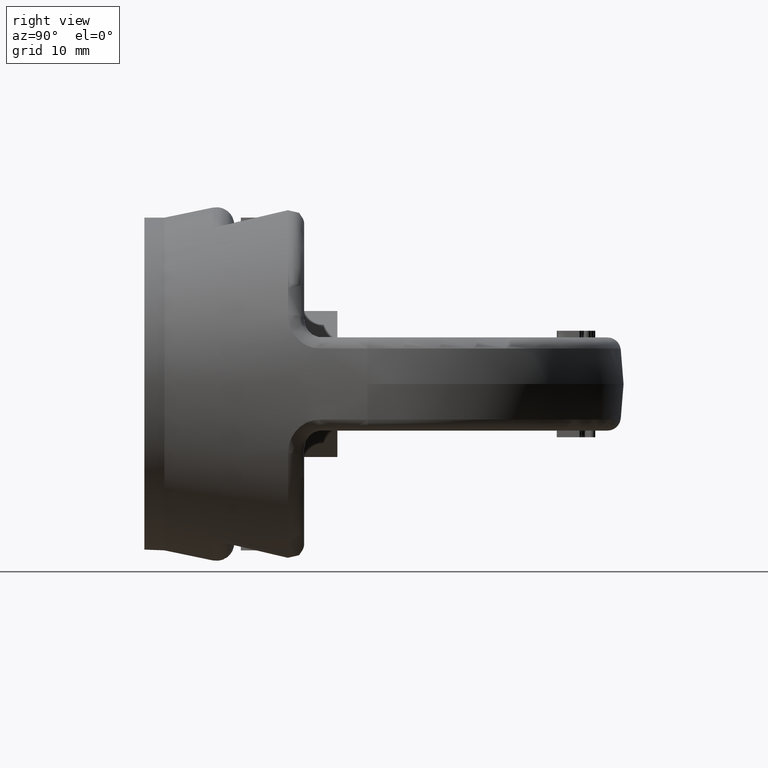
[diagram: clean part render]
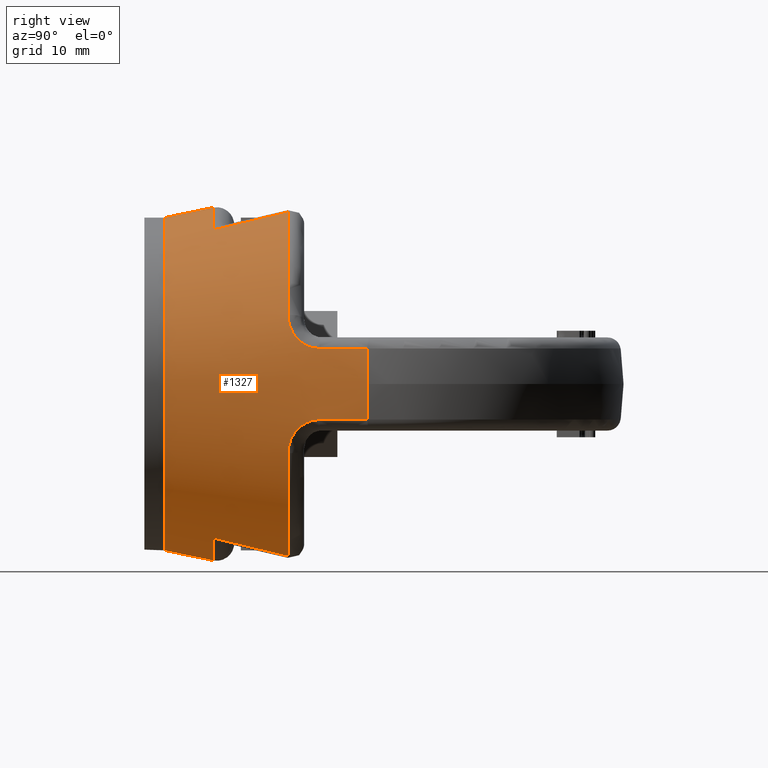
[diagram: same view with one face highlighted and labeled with its STEP entity id]
A machine part, right view. The second image highlights one B-rep face of the part: STEP entity #1327.
In plain terms, the highlighted conical surface has half-angle 11.73 deg.
Its self-contained STEP definition (entity closure, byte-faithful):
#1104=CONICAL_SURFACE('',#5120,24.3770927291007,11.7299779899071);
#1327=ADVANCED_FACE('',(#1779,#1780),#1104,.T.);
#1682=CIRCLE('',#5111,31.3317304100688);
#1683=CIRCLE('',#5112,28.8606548450075);
#1684=CIRCLE('',#5113,26.51391404643);
#1685=CIRCLE('',#5114,28.8606548450075);
#1686=CIRCLE('',#5115,31.3317304100688);
#1687=CIRCLE('',#5116,28.8606548450075);
#1688=CIRCLE('',#5117,26.51391404643);
#1689=CIRCLE('',#5118,28.8606548450075);
#1690=CIRCLE('',#5119,25.0000000000001);
#1779=FACE_BOUND('',#1840,.T.);
#1780=FACE_BOUND('',#1841,.T.);
#1840=EDGE_LOOP('',(#2768,#2769,#2770,#2771,#2772,#2773,#2774,#2775,#2776,
#2777,#2778,#2779,#2780,#2781,#2782,#2783,#2784,#2785,#2786,#2787));
#1841=EDGE_LOOP('',(#2788));
#2768=ORIENTED_EDGE('',*,*,#4322,.T.);
#2769=ORIENTED_EDGE('',*,*,#4323,.T.);
#2770=ORIENTED_EDGE('',*,*,#4324,.T.);
#2771=ORIENTED_EDGE('',*,*,#4325,.T.);
#2772=ORIENTED_EDGE('',*,*,#4326,.T.);
#2773=ORIENTED_EDGE('',*,*,#4327,.T.);
#2774=ORIENTED_EDGE('',*,*,#4328,.T.);
#2775=ORIENTED_EDGE('',*,*,#4329,.T.);
#2776=ORIENTED_EDGE('',*,*,#4330,.T.);
#2777=ORIENTED_EDGE('',*,*,#4331,.T.);
#2778=ORIENTED_EDGE('',*,*,#4332,.T.);
#2779=ORIENTED_EDGE('',*,*,#4333,.T.);
#2780=ORIENTED_EDGE('',*,*,#4334,.T.);
#2781=ORIENTED_EDGE('',*,*,#4335,.T.);
#2782=ORIENTED_EDGE('',*,*,#4336,.T.);
#2783=ORIENTED_EDGE('',*,*,#4337,.T.);
#2784=ORIENTED_EDGE('',*,*,#4338,.T.);
#2785=ORIENTED_EDGE('',*,*,#4339,.T.);
#2786=ORIENTED_EDGE('',*,*,#4340,.T.);
#2787=ORIENTED_EDGE('',*,*,#4341,.T.);
#2788=ORIENTED_EDGE('',*,*,#4342,.F.);
#3936=VERTEX_POINT('',#6576);
#3937=VERTEX_POINT('',#6577);
#3938=VERTEX_POINT('',#6585);
#3939=VERTEX_POINT('',#6592);
#3940=VERTEX_POINT('',#6594);
#3941=VERTEX_POINT('',#6602);
#3942=VERTEX_POINT('',#6604);
#3943=VERTEX_POINT('',#6612);
#3944=VERTEX_POINT('',#6614);
#3945=VERTEX_POINT('',#6621);
#3946=VERTEX_POINT('',#6629);
#3947=VERTEX_POINT('',#6631);
#3948=VERTEX_POINT('',#6639);
#3949=VERTEX_POINT('',#6646);
#3950=VERTEX_POINT('',#6648);
#3951=VERTEX_POINT('',#6656);
#3952=VERTEX_POINT('',#6658);
#3953=VERTEX_POINT('',#6666);
#3954=VERTEX_POINT('',#6668);
#3955=VERTEX_POINT('',#6675);
#3956=VERTEX_POINT('',#6684);
#4322=EDGE_CURVE('',#3936,#3937,#1682,.T.);
#4323=EDGE_CURVE('',#3937,#3938,#4867,.T.);
#4324=EDGE_CURVE('',#3938,#3939,#4868,.T.);
#4325=EDGE_CURVE('',#3939,#3940,#1683,.T.);
#4326=EDGE_CURVE('',#3940,#3941,#4869,.T.);
#4327=EDGE_CURVE('',#3941,#3942,#1684,.T.);
#4328=EDGE_CURVE('',#3942,#3943,#4870,.T.);
#4329=EDGE_CURVE('',#3943,#3944,#1685,.T.);
#4330=EDGE_CURVE('',#3944,#3945,#4871,.T.);
#4331=EDGE_CURVE('',#3945,#3946,#4872,.T.);
#4332=EDGE_CURVE('',#3946,#3947,#1686,.T.);
#4333=EDGE_CURVE('',#3947,#3948,#4873,.T.);
#4334=EDGE_CURVE('',#3948,#3949,#4874,.T.);
#4335=EDGE_CURVE('',#3949,#3950,#1687,.T.);
#4336=EDGE_CURVE('',#3950,#3951,#4875,.T.);
#4337=EDGE_CURVE('',#3951,#3952,#1688,.T.);
#4338=EDGE_CURVE('',#3952,#3953,#4876,.T.);
#4339=EDGE_CURVE('',#3953,#3954,#1689,.T.);
#4340=EDGE_CURVE('',#3954,#3955,#4877,.T.);
#4341=EDGE_CURVE('',#3955,#3936,#4878,.T.);
#4342=EDGE_CURVE('',#3956,#3956,#1690,.T.);
#4867=B_SPLINE_CURVE_WITH_KNOTS('',3,(#6578,#6579,#6580,#6581,#6582,#6583,
#6584),.UNSPECIFIED.,.F.,.F.,(4,3,4),(0.,0.540969376255057,1.),
 .UNSPECIFIED.);
#4868=B_SPLINE_CURVE_WITH_KNOTS('',3,(#6586,#6587,#6588,#6589,#6590,#6591),
 .UNSPECIFIED.,.F.,.F.,(4,2,4),(0.,0.5,1.),.UNSPECIFIED.);
#4869=B_SPLINE_CURVE_WITH_KNOTS('',3,(#6595,#6596,#6597,#6598,#6599,#6600,
#6601),.UNSPECIFIED.,.F.,.F.,(4,3,4),(0.,0.285005800792451,1.),
 .UNSPECIFIED.);
#4870=B_SPLINE_CURVE_WITH_KNOTS('',3,(#6605,#6606,#6607,#6608,#6609,#6610,
#6611),.UNSPECIFIED.,.F.,.F.,(4,3,4),(0.,0.714994199207547,1.),
 .UNSPECIFIED.);
#4871=B_SPLINE_CURVE_WITH_KNOTS('',3,(#6615,#6616,#6617,#6618,#6619,#6620),
 .UNSPECIFIED.,.F.,.F.,(4,2,4),(0.,0.5,1.),.UNSPECIFIED.);
#4872=B_SPLINE_CURVE_WITH_KNOTS('',3,(#6622,#6623,#6624,#6625,#6626,#6627,
#6628),.UNSPECIFIED.,.F.,.F.,(4,3,4),(0.,0.540969377624563,1.),
 .UNSPECIFIED.);
#4873=B_SPLINE_CURVE_WITH_KNOTS('',3,(#6632,#6633,#6634,#6635,#6636,#6637,
#6638),.UNSPECIFIED.,.F.,.F.,(4,3,4),(0.,0.540969376255057,1.),
 .UNSPECIFIED.);
#4874=B_SPLINE_CURVE_WITH_KNOTS('',3,(#6640,#6641,#6642,#6643,#6644,#6645),
 .UNSPECIFIED.,.F.,.F.,(4,2,4),(0.,0.5,1.),.UNSPECIFIED.);
#4875=B_SPLINE_CURVE_WITH_KNOTS('',3,(#6649,#6650,#6651,#6652,#6653,#6654,
#6655),.UNSPECIFIED.,.F.,.F.,(4,3,4),(0.,0.28500580079245,1.),
 .UNSPECIFIED.);
#4876=B_SPLINE_CURVE_WITH_KNOTS('',3,(#6659,#6660,#6661,#6662,#6663,#6664,
#6665),.UNSPECIFIED.,.F.,.F.,(4,3,4),(0.,0.714994199207547,1.),
 .UNSPECIFIED.);
#4877=B_SPLINE_CURVE_WITH_KNOTS('',3,(#6669,#6670,#6671,#6672,#6673,#6674),
 .UNSPECIFIED.,.F.,.F.,(4,2,4),(0.,0.5,1.),.UNSPECIFIED.);
#4878=B_SPLINE_CURVE_WITH_KNOTS('',3,(#6676,#6677,#6678,#6679,#6680,#6681,
#6682),.UNSPECIFIED.,.F.,.F.,(4,3,4),(0.,0.540969377624563,1.),
 .UNSPECIFIED.);
#5111=AXIS2_PLACEMENT_3D('',#6575,#5432,#5433);
#5112=AXIS2_PLACEMENT_3D('',#6593,#5434,#5435);
#5113=AXIS2_PLACEMENT_3D('',#6603,#5436,#5437);
#5114=AXIS2_PLACEMENT_3D('',#6613,#5438,#5439);
#5115=AXIS2_PLACEMENT_3D('',#6630,#5440,#5441);
#5116=AXIS2_PLACEMENT_3D('',#6647,#5442,#5443);
#5117=AXIS2_PLACEMENT_3D('',#6657,#5444,#5445);
#5118=AXIS2_PLACEMENT_3D('',#6667,#5446,#5447);
#5119=AXIS2_PLACEMENT_3D('',#6683,#5448,#5449);
#5120=AXIS2_PLACEMENT_3D('',#6685,#5450,#5451);
#5432=DIRECTION('',(-1.76949306739865E-15,-1.,0.));
#5433=DIRECTION('',(1.,-1.77172312236603E-15,0.));
#5434=DIRECTION('',(0.,-1.,0.));
#5435=DIRECTION('',(-2.34291072916505E-15,0.,1.));
#5436=DIRECTION('',(-9.6373526443156E-17,-1.,-2.25794569111142E-31));
#5437=DIRECTION('',(-1.,6.54269102984583E-17,-2.34291072916505E-15));
#5438=DIRECTION('',(0.,-1.,0.));
#5439=DIRECTION('',(-2.34291072916505E-15,0.,1.));
#5440=DIRECTION('',(-1.76949306739865E-15,-1.,0.));
#5441=DIRECTION('',(1.,-1.77172312236603E-15,0.));
#5442=DIRECTION('',(0.,-1.,0.));
#5443=DIRECTION('',(0.,0.,-1.));
#5444=DIRECTION('',(9.6373526443156E-17,-1.,0.));
#5445=DIRECTION('',(1.,6.54269102984583E-17,0.));
#5446=DIRECTION('',(0.,-1.,0.));
#5447=DIRECTION('',(0.,0.,-1.));
#5448=DIRECTION('',(0.,-1.,0.));
#5449=DIRECTION('',(0.,0.,1.));
#5450=DIRECTION('',(1.76949306739865E-15,1.,0.));
#5451=DIRECTION('',(-1.,1.73462740083006E-15,0.));
#6575=CARTESIAN_POINT('',(-6.81353702448842E-14,33.4944124392357,0.));
#6576=CARTESIAN_POINT('',(-30.8744698099383,33.4944124392358,5.33333333333336));
#6577=CARTESIAN_POINT('',(-30.8744698099382,33.4944124392357,-5.33333333333341));
#6578=CARTESIAN_POINT('',(-30.8744698099382,33.4944124392357,-5.33333333333341));
#6579=CARTESIAN_POINT('',(-30.5990508843649,32.1898386503886,-5.33640726268514));
#6580=CARTESIAN_POINT('',(-30.3235021923731,30.88529244629,-5.33956609985791));
#6581=CARTESIAN_POINT('',(-30.0478113648208,29.5807765201668,-5.34281729147858));
#6582=CARTESIAN_POINT('',(-29.8138784690204,28.4738510887873,-5.34557603640084));
#6583=CARTESIAN_POINT('',(-29.5798432136049,27.3669474473044,-5.3484012875716));
#6584=CARTESIAN_POINT('',(-29.3456971308044,26.2600674441189,-5.35129809668409));
#6585=CARTESIAN_POINT('',(-29.3456971308044,26.2600674441189,-5.35129809668409));
#6586=CARTESIAN_POINT('',(-29.3456971308044,26.2600674441189,-5.35129809668409));
#6587=CARTESIAN_POINT('',(-29.0671590410843,24.9433328741914,-5.35474411494254));
#6588=CARTESIAN_POINT('',(-28.7035183920625,23.7095811281299,-5.97088325806664));
#6589=CARTESIAN_POINT('',(-27.8775551624468,22.0308066341623,-7.87911089114104));
#6590=CARTESIAN_POINT('',(-27.415266817982,21.5934007774522,-9.11816066060677));
#6591=CARTESIAN_POINT('',(-26.9331424655513,21.5934007774522,-10.3703054445358));
#6592=CARTESIAN_POINT('',(-26.9331424655513,21.5934007774522,-10.3703054445358));
#6593=CARTESIAN_POINT('',(8.91941278754407E-14,21.5934007774522,2.08973879177889E-28));
#6594=CARTESIAN_POINT('',(-12.8271153916028,21.5934007774522,-25.8534815607717));
#6595=CARTESIAN_POINT('',(-12.8271153916028,21.5934007774522,-25.8534815607717));
#6596=CARTESIAN_POINT('',(-12.8369795516159,20.5187781611358,-25.5995038154908));
#6597=CARTESIAN_POINT('',(-12.8470930576782,19.4443772695526,-25.3445952643068));
#6598=CARTESIAN_POINT('',(-12.857475571315,18.3702242782116,-25.0886591026312));
#6599=CARTESIAN_POINT('',(-12.8835221219086,15.6755030177525,-24.446593566579));
#6600=CARTESIAN_POINT('',(-12.9112550958806,12.9823135367428,-23.7981073785501));
#6601=CARTESIAN_POINT('',(-12.9410458438746,10.291201036603,-23.1412396065597));
#6602=CARTESIAN_POINT('',(-12.9410458438746,10.291201036603,-23.1412396065597));
#6603=CARTESIAN_POINT('',(1.09193291963228E-13,10.291201036603,2.55830135293499E-28));
#6604=CARTESIAN_POINT('',(12.9410458438747,10.291201036603,-23.1412396065598));
#6605=CARTESIAN_POINT('',(12.9410458438747,10.291201036603,-23.1412396065598));
#6606=CARTESIAN_POINT('',(12.9112550958807,12.9823135367428,-23.7981073785501));
#6607=CARTESIAN_POINT('',(12.8835221219087,15.6755030177525,-24.446593566579));
#6608=CARTESIAN_POINT('',(12.8574755713151,18.3702242782116,-25.0886591026312));
#6609=CARTESIAN_POINT('',(12.8470930576783,19.4443772695526,-25.3445952643068));
#6610=CARTESIAN_POINT('',(12.836979551616,20.5187781611358,-25.5995038154908));
#6611=CARTESIAN_POINT('',(12.8271153916029,21.5934007774522,-25.8534815607717));
#6612=CARTESIAN_POINT('',(12.8271153916029,21.5934007774522,-25.8534815607717));
#6613=CARTESIAN_POINT('',(8.91941278754407E-14,21.5934007774522,2.08973879177889E-28));
#6614=CARTESIAN_POINT('',(26.9331424655515,21.5934007774522,-10.3703054445357));
#6615=CARTESIAN_POINT('',(26.9331424655515,21.5934007774522,-10.3703054445357));
#6616=CARTESIAN_POINT('',(27.4150417668456,21.5934007774522,-9.1187451500758));
#6617=CARTESIAN_POINT('',(27.8818697001026,22.038710283618,-7.86879205466092));
#6618=CARTESIAN_POINT('',(28.701430678347,23.7062058648732,-5.97605840477881));
#6619=CARTESIAN_POINT('',(29.0673284040454,24.9441335046032,-5.35474201961728));
#6620=CARTESIAN_POINT('',(29.3456971308046,26.2600674441189,-5.35129809668395));
#6621=CARTESIAN_POINT('',(29.3456971308045,26.2600674441189,-5.35129809668395));
#6622=CARTESIAN_POINT('',(29.3456971308045,26.2600674441189,-5.35129809668395));
#6623=CARTESIAN_POINT('',(29.6216392005522,27.5645298352385,-5.34788419587211));
#6624=CARTESIAN_POINT('',(29.8974273852921,28.8690250497964,-5.34456965808517));
#6625=CARTESIAN_POINT('',(30.1730754163772,30.1735500910464,-5.34134628537277));
#6626=CARTESIAN_POINT('',(30.4069719970117,31.2804832525109,-5.33861114573628));
#6627=CARTESIAN_POINT('',(30.6407676325869,32.3874379118518,-5.3359416652808));
#6628=CARTESIAN_POINT('',(30.8744698099383,33.4944124392358,-5.33333333333329));
#6629=CARTESIAN_POINT('',(30.8744698099383,33.4944124392358,-5.33333333333329));
#6630=CARTESIAN_POINT('',(-6.81353702448842E-14,33.4944124392357,0.));
#6631=CARTESIAN_POINT('',(30.8744698099382,33.4944124392357,5.33333333333334));
#6632=CARTESIAN_POINT('',(30.8744698099382,33.4944124392357,5.33333333333334));
#6633=CARTESIAN_POINT('',(30.5990508843649,32.1898386503886,5.33640726268507));
#6634=CARTESIAN_POINT('',(30.3235021923731,30.88529244629,5.33956609985784));
#6635=CARTESIAN_POINT('',(30.0478113648208,29.5807765201668,5.34281729147851));
#6636=CARTESIAN_POINT('',(29.8138784690204,28.4738510887873,5.34557603640077));
#6637=CARTESIAN_POINT('',(29.579843213605,27.3669474473044,5.34840128757154));
#6638=CARTESIAN_POINT('',(29.3456971308044,26.2600674441189,5.35129809668402));
#6639=CARTESIAN_POINT('',(29.3456971308044,26.2600674441189,5.35129809668402));
#6640=CARTESIAN_POINT('',(29.3456971308044,26.2600674441189,5.35129809668402));
#6641=CARTESIAN_POINT('',(29.0671590410843,24.9433328741914,5.35474411494247));
#6642=CARTESIAN_POINT('',(28.7035183920625,23.7095811281299,5.97088325806657));
#6643=CARTESIAN_POINT('',(27.8775551624468,22.0308066341623,7.87911089114098));
#6644=CARTESIAN_POINT('',(27.415266817982,21.5934007774522,9.11816066060671));
#6645=CARTESIAN_POINT('',(26.9331424655513,21.5934007774522,10.3703054445357));
#6646=CARTESIAN_POINT('',(26.9331424655513,21.5934007774522,10.3703054445357));
#6647=CARTESIAN_POINT('',(-8.91941278754407E-14,21.5934007774522,0.));
#6648=CARTESIAN_POINT('',(12.8271153916028,21.5934007774522,25.8534815607717));
#6649=CARTESIAN_POINT('',(12.8271153916028,21.5934007774522,25.8534815607717));
#6650=CARTESIAN_POINT('',(12.8369795516159,20.5187781611358,25.5995038154908));
#6651=CARTESIAN_POINT('',(12.8470930576783,19.4443772695526,25.3445952643067));
#6652=CARTESIAN_POINT('',(12.8574755713151,18.3702242782116,25.0886591026312));
#6653=CARTESIAN_POINT('',(12.8835221219087,15.6755030177525,24.4465935665789));
#6654=CARTESIAN_POINT('',(12.9112550958807,12.9823135367428,23.79810737855));
#6655=CARTESIAN_POINT('',(12.9410458438746,10.291201036603,23.1412396065597));
#6656=CARTESIAN_POINT('',(12.9410458438746,10.291201036603,23.1412396065597));
#6657=CARTESIAN_POINT('',(-1.09193291963228E-13,10.291201036603,0.));
#6658=CARTESIAN_POINT('',(-12.9410458438746,10.291201036603,23.1412396065598));
#6659=CARTESIAN_POINT('',(-12.9410458438746,10.291201036603,23.1412396065598));
#6660=CARTESIAN_POINT('',(-12.9112550958807,12.9823135367428,23.7981073785501));
#6661=CARTESIAN_POINT('',(-12.8835221219086,15.6755030177525,24.446593566579));
#6662=CARTESIAN_POINT('',(-12.8574755713151,18.3702242782116,25.0886591026312));
#6663=CARTESIAN_POINT('',(-12.8470930576782,19.4443772695526,25.3445952643068));
#6664=CARTESIAN_POINT('',(-12.8369795516159,20.5187781611358,25.5995038154909));
#6665=CARTESIAN_POINT('',(-12.8271153916028,21.5934007774522,25.8534815607717));
#6666=CARTESIAN_POINT('',(-12.8271153916028,21.5934007774522,25.8534815607717));
#6667=CARTESIAN_POINT('',(-8.91941278754407E-14,21.5934007774522,0.));
#6668=CARTESIAN_POINT('',(-26.9331424655515,21.5934007774522,10.3703054445357));
#6669=CARTESIAN_POINT('',(-26.9331424655515,21.5934007774522,10.3703054445357));
#6670=CARTESIAN_POINT('',(-27.4150417668455,21.5934007774522,9.11874515007586));
#6671=CARTESIAN_POINT('',(-27.8818697001026,22.038710283618,7.86879205466099));
#6672=CARTESIAN_POINT('',(-28.701430678347,23.7062058648732,5.97605840477888));
#6673=CARTESIAN_POINT('',(-29.0673284040454,24.9441335046032,5.35474201961735));
#6674=CARTESIAN_POINT('',(-29.3456971308045,26.2600674441189,5.35129809668402));
#6675=CARTESIAN_POINT('',(-29.3456971308045,26.2600674441189,5.35129809668402));
#6676=CARTESIAN_POINT('',(-29.3456971308045,26.2600674441189,5.35129809668402));
#6677=CARTESIAN_POINT('',(-29.6216392005522,27.5645298352385,5.34788419587218));
#6678=CARTESIAN_POINT('',(-29.8974273852921,28.8690250497964,5.34456965808524));
#6679=CARTESIAN_POINT('',(-30.1730754163772,30.1735500910464,5.34134628537284));
#6680=CARTESIAN_POINT('',(-30.4069719970117,31.2804832525109,5.33861114573635));
#6681=CARTESIAN_POINT('',(-30.6407676325869,32.3874379118518,5.33594166528087));
#6682=CARTESIAN_POINT('',(-30.8744698099383,33.4944124392358,5.33333333333336));
#6683=CARTESIAN_POINT('',(-1.27403500852703E-13,3.,1.44937300146023E-14));
#6684=CARTESIAN_POINT('',(-1.27403500852703E-13,3.,25.0000000000001));
#6685=CARTESIAN_POINT('',(-1.27403500852703E-13,4.16333634234434E-14,0.));